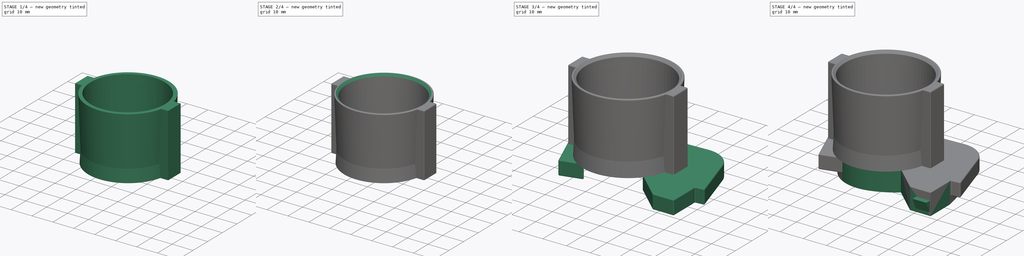
[diagram: build sequence overview — one tinted view per stage of 4, left to right]
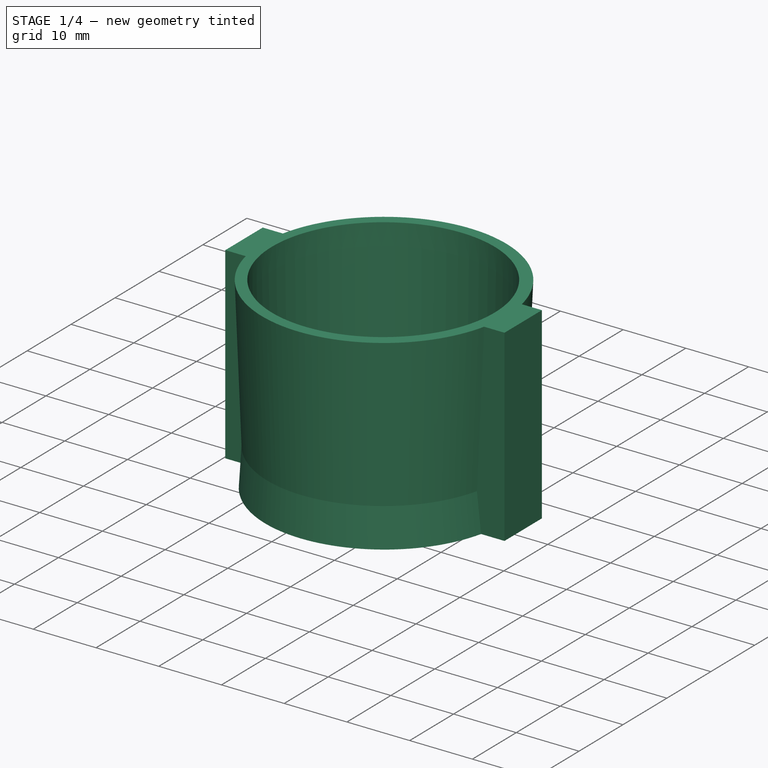
[diagram: stage 1 of 4 — iso view after this stage's code; geometry added in this stage tinted green]
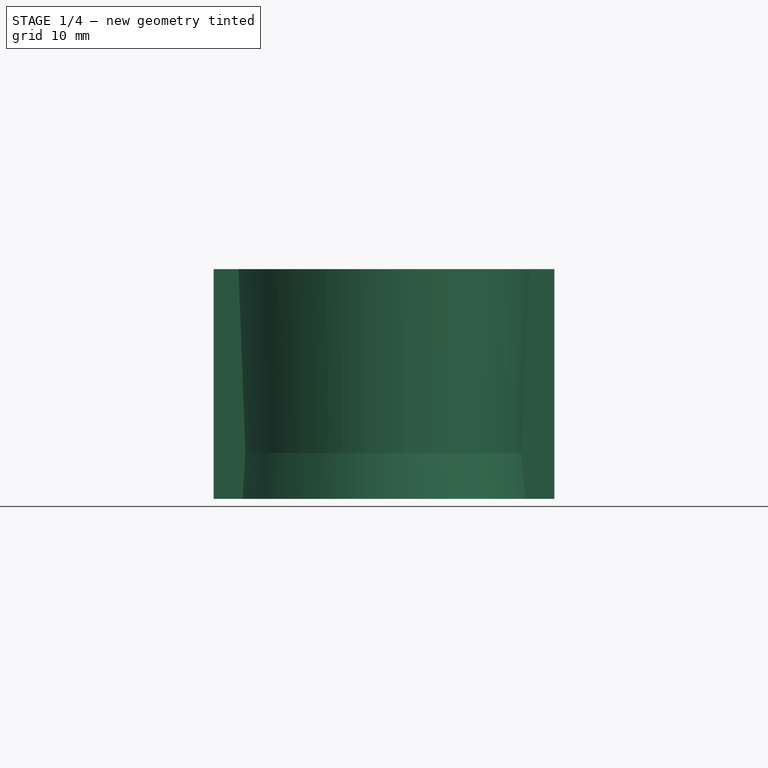
[diagram: stage 1 of 4 — front view after this stage's code; geometry added in this stage tinted green]
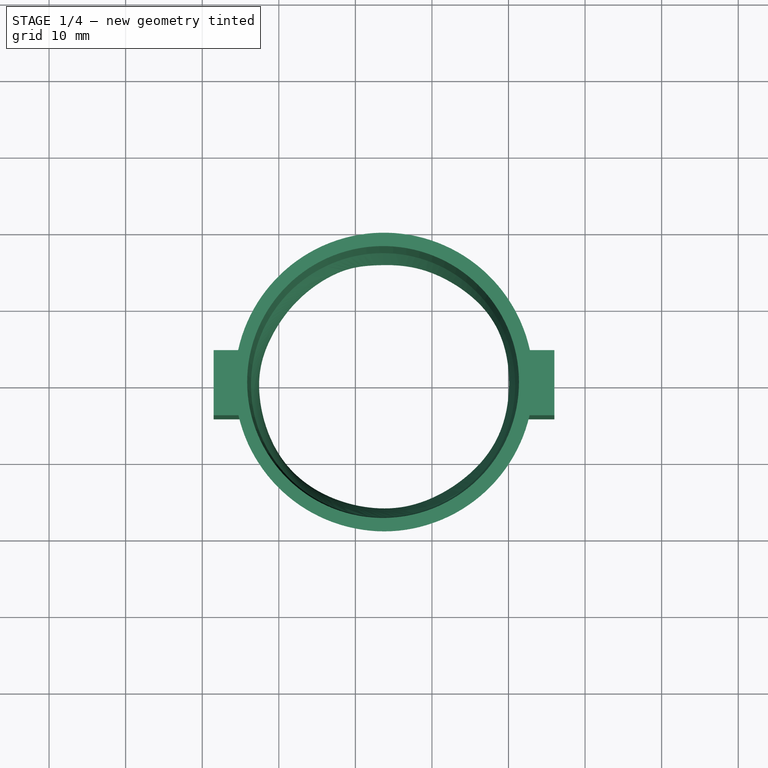
[diagram: stage 1 of 4 — top view after this stage's code; geometry added in this stage tinted green]
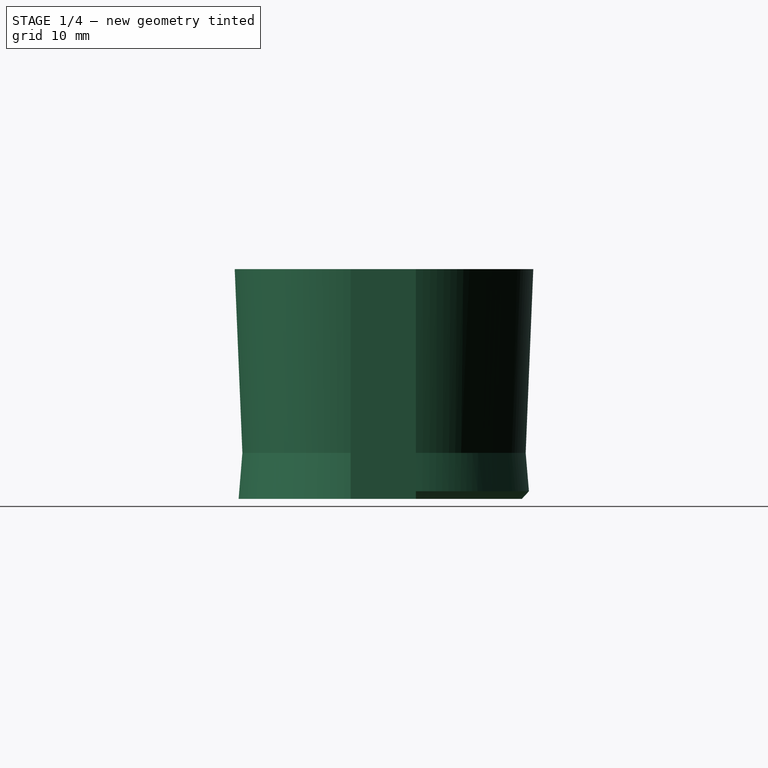
[diagram: stage 1 of 4 — right view after this stage's code; geometry added in this stage tinted green]
FCSTD DOCUMENT  (FreeCAD 0.20R27319 (Git))
Label: PlanerNozzle
License: All rights reserved
LicenseURL: http://en.wikipedia.org/wiki/All_rights_reserved
objects: Sketcher::SketchObject×7, Part::Extrusion×3, Part::Chamfer×3, Part::Fillet×3, PartDesign::AdditiveLoft×2, Spreadsheet::Sheet×1, PartDesign::Plane×1, Image::ImagePlane×1, Part::Offset2D×1, PartDesign::Body×1
note: 23 computed .brp shape members not serialized (recipe doc carries the construction recipe); baked Part::Feature solids carry a one-line shape summary decoded from their .brp

FEATURE [PartDesign::AdditiveLoft] AdditiveLoft
  Closed = false
  Profile = -> Sketch003
  Ruled = false
  Sections = -> [Sketch004]
FEATURE [PartDesign::AdditiveLoft] AdditiveLoft001
  BaseFeature = -> AdditiveLoft
  Closed = false
  Profile = -> Sketch005
  Ruled = false
  Sections = -> [Sketch004]
FEATURE [Part::Chamfer] Chamfer001
  Base = -> AdditiveLoft001
  Edges = 1 edges r=1: [Edge1]
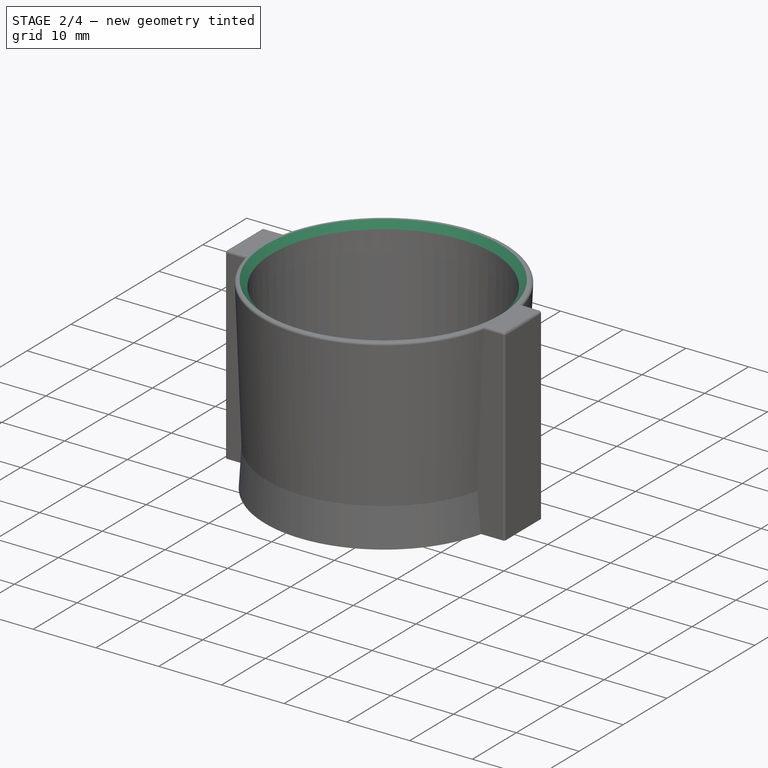
[diagram: stage 2 of 4 — iso view after this stage's code; geometry added in this stage tinted green]
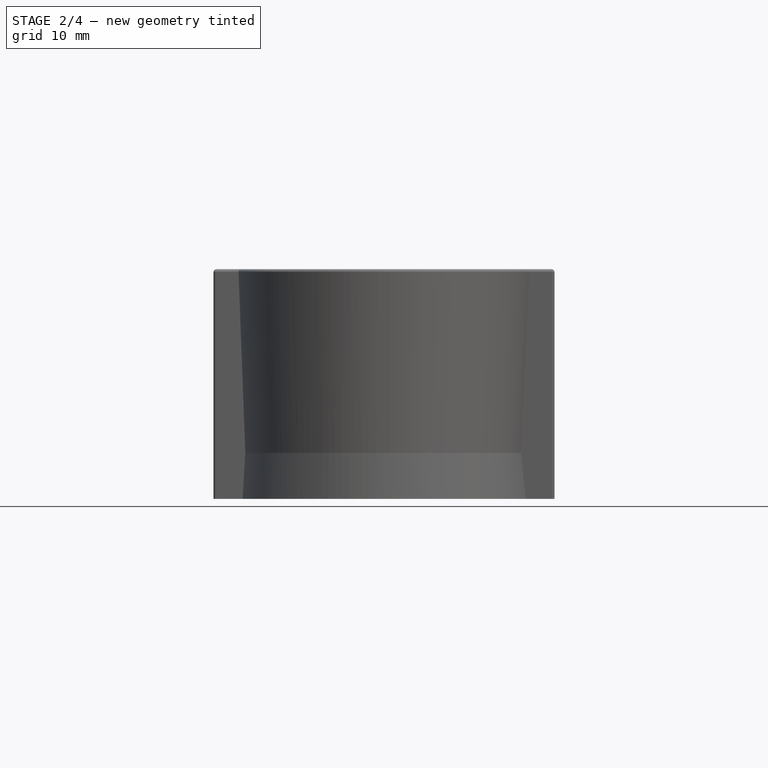
[diagram: stage 2 of 4 — front view after this stage's code; geometry added in this stage tinted green]
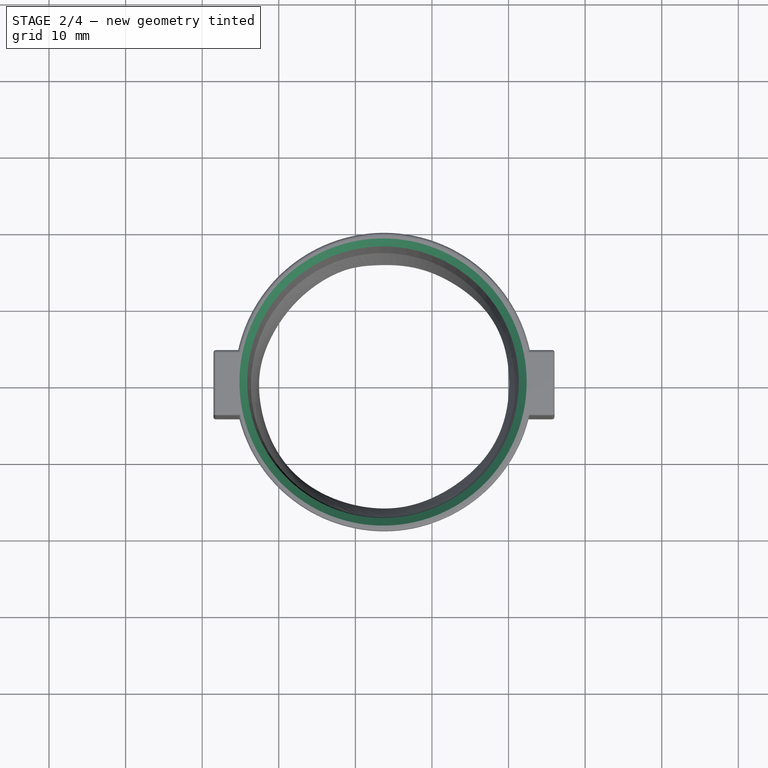
[diagram: stage 2 of 4 — top view after this stage's code; geometry added in this stage tinted green]
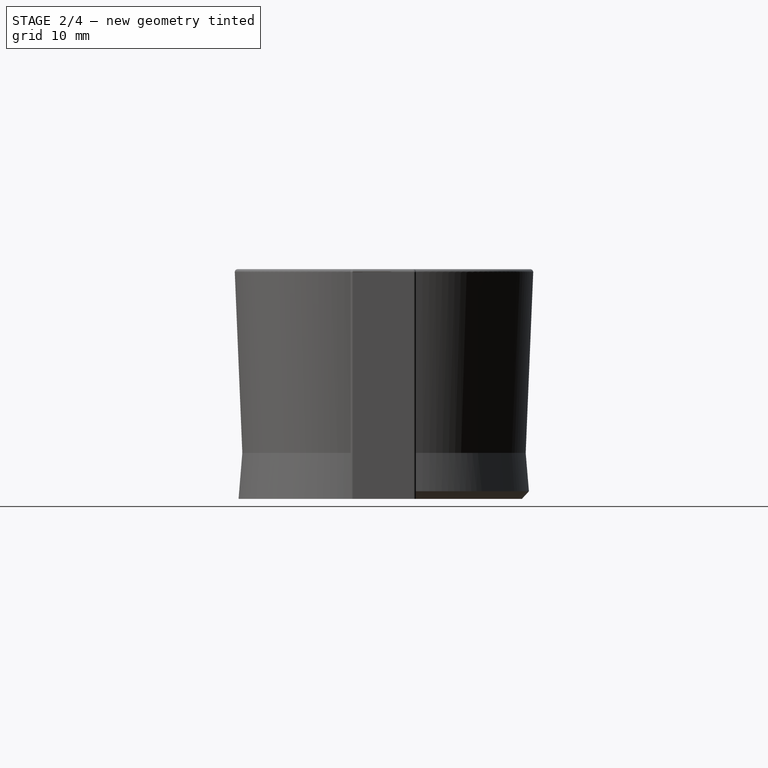
[diagram: stage 2 of 4 — right view after this stage's code; geometry added in this stage tinted green]
FEATURE [Part::Chamfer] Chamfer002
  Base = -> Chamfer001
  Edges = 1 edges r=1: [Edge52]
FEATURE [Part::Fillet] Fillet001
  Base = -> Chamfer002
  Edges = 8 edges r=0.4: [Edge11,Edge12,Edge13,Edge14,Edge15,Edge16,Edge17,Edge18]
FEATURE [Part::Fillet] Fillet002
  Base = -> Fillet001
  Edges = 8 edges r=0.3: [Edge42,Edge44,Edge49,Edge53,Edge60,Edge65,Edge73,Edge77]
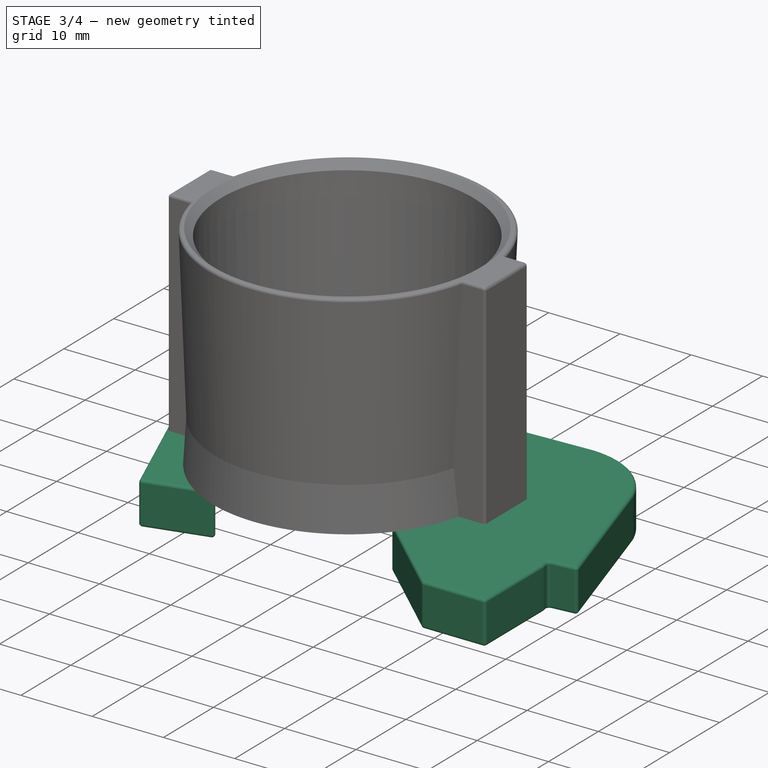
[diagram: stage 3 of 4 — iso view after this stage's code; geometry added in this stage tinted green]
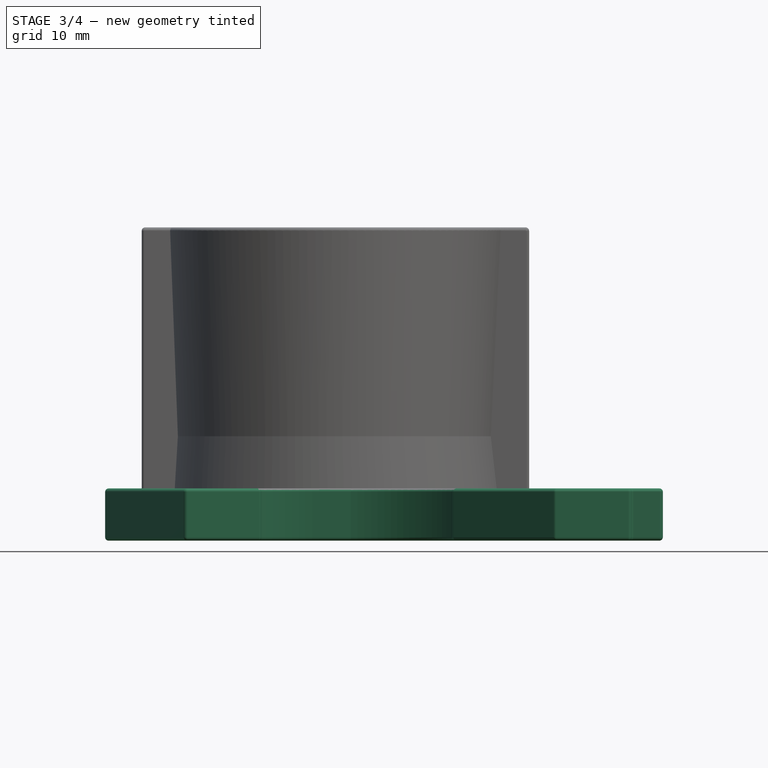
[diagram: stage 3 of 4 — front view after this stage's code; geometry added in this stage tinted green]
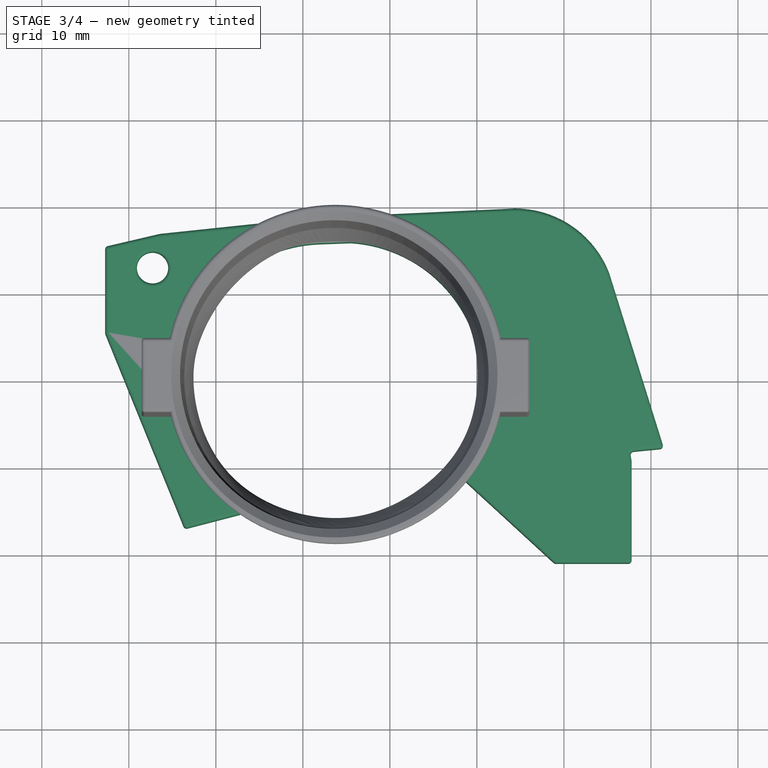
[diagram: stage 3 of 4 — top view after this stage's code; geometry added in this stage tinted green]
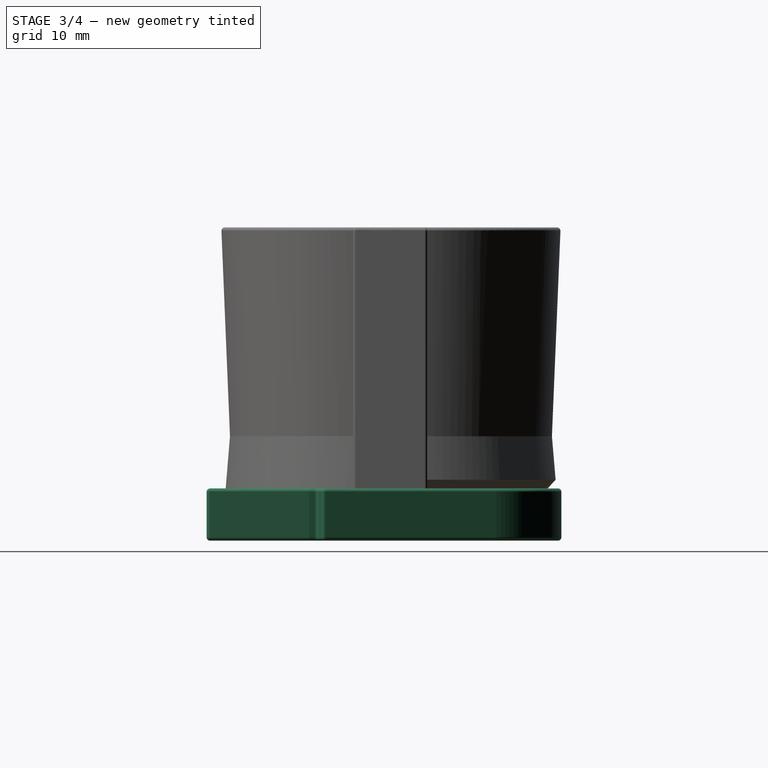
[diagram: stage 3 of 4 — right view after this stage's code; geometry added in this stage tinted green]
FEATURE [Sketcher::SketchObject] Sketch
  FullyConstrained = true
  MapMode = 5
  Support = -> [XY_Plane]
  sketch-geometry (9):
    g0: ArcOfCircle CenterX=13.6173 CenterY=7.64706 CenterZ=0 NormalX=0 NormalY=0 NormalZ=1 AngleXU=0 Radius=8.98057 StartAngle=0.465452 EndAngle=1.59252
    g1: ArcOfCircle CenterX=-7.8333 CenterY=0.973365 CenterZ=0 NormalX=0 NormalY=0 NormalZ=1 AngleXU=0 Radius=15.1867 StartAngle=1.59252 EndAngle=2.18773
    g2: ArcOfCircle CenterX=-10.2795 CenterY=11.9075 CenterZ=0 NormalX=0 NormalY=0 NormalZ=1 AngleXU=0 Radius=28.8964 StartAngle=4.97292 EndAngle=5.38581
    g3: LineSegment StartX=-8.1632 StartY=16.1565 StartZ=0 EndX=13.4222 EndY=16.6255 EndZ=0
    g4: ArcOfCircle CenterX=-7.08236 CenterY=-0.085358 CenterZ=0 NormalX=0 NormalY=0 NormalZ=1 AngleXU=0 Radius=16.4847 StartAngle=2.18773 EndAngle=4.97292
    g5: LineSegment StartX=27.7807 StartY=-9.18364 StartZ=0 EndX=27.7807 EndY=-20.9535 EndZ=0
    g6: LineSegment StartX=7.74209 StartY=-10.6807 StartZ=0 EndX=18.9241 EndY=-20.9535 EndZ=0
    g7: LineSegment StartX=18.9241 StartY=-20.9535 StartZ=0 EndX=27.7807 EndY=-20.9535 EndZ=0
    g8: ArcOfCircle CenterX=-70.9367 CenterY=-26.8964 CenterZ=0 NormalX=0 NormalY=0 NormalZ=1 AngleXU=0 Radius=100.294 StartAngle=0.17754 EndAngle=0.394787
  constraints (18):
    c: Tangent(g3,g1) = 1.5708
    c: Tangent(g4,g2) = -1.5708
    c: Tangent(g3,g0) = 1.5708
    c: Coincident(g6,g2)
    c: Coincident(g7,g6)
    c: Coincident(g7,g5)
    c: Horizontal(g7)
    c: Coincident(g8,g0)
    c: Coincident(g5,g8)
    c: Block(g1)
    c: Tangent(g4,g1) = -1.5708
    c: Block(g4)
    c: Block(g2)
    c: Block(g6)
    c: Block(g7)
    c: Block(g5)
    c: Block(g0)
    c: Block(g8)
FEATURE [Spreadsheet::Sheet] Spreadsheet
  cells = A1=Scale; B1(Scale)=0.15; C1=29; B2=0.15; B3=0.31
FEATURE [PartDesign::Plane] DatumPlane
  AttachmentOffset = pos=(0,0,6.3) rot=(0,0,1;0rad)
  Length = 60
  MapMode = 2
  Placement = pos=(0,0,6.3) rot=(0,0,1;0rad)
  ResizeMode = 0
  Width = 60
FEATURE [Image::ImagePlane] ImagePlane
  Placement = pos=(0,-1,-0.1) rot=(0,0,1;0rad)
  XSize = 68.4915
  YSize = 44.4045
  expr: XSize = 456.61 * Spreadsheet.Scale
  expr: YSize = 296.03 * Spreadsheet.Scale
FEATURE [Part::Offset2D] Offset2D
  Fill = true
  Intersection = false
  Join = 0
  Mode = 1
  SelfIntersection = false
  Source = -> Sketch
  Value = -1
FEATURE [Sketcher::SketchObject] Sketch001
  AttacherType = A
  ExternalGeometry = -> [Offset2D]
  FullyConstrained = false
  MapMode = 5
  Support = -> [XY_Plane]
  sketch-geometry (17):
    g0: Circle CenterX=-27.2731 CenterY=13.0055 CenterZ=0 NormalX=0 NormalY=0 NormalZ=1 AngleXU=0 Radius=1.8
    g1: LineSegment StartX=-32.7193 StartY=15.4311 StartZ=0 EndX=-26.4301 EndY=16.9002 EndZ=0
    g2: LineSegment StartX=-32.7193 StartY=15.4311 StartZ=0 EndX=-32.7181 EndY=5.47 EndZ=0
    g3: LineSegment StartX=-32.7181 StartY=5.47 StartZ=0 EndX=-23.5932 EndY=-16.9853 EndZ=0
    g4: LineSegment StartX=31.4962 StartY=-7.74358 StartZ=0 EndX=27.5848 EndY=-8.12436 EndZ=0
    g5: ArcOfCircle CenterX=14.3749 CenterY=8.21345 CenterZ=0 NormalX=0 NormalY=0 NormalZ=1 AngleXU=0 Radius=11.6038 StartAngle=0.364809 EndAngle=1.5697
    g6: LineSegment StartX=-26.4301 StartY=16.9002 StartZ=0 EndX=-8.77976 EndY=18.7554 EndZ=0
    g7: LineSegment StartX=14.3876 StartY=19.8172 StartZ=0 EndX=-8.77975 EndY=18.7554 EndZ=0
    g8: LineSegment StartX=-23.5932 StartY=-16.9853 StartZ=0 EndX=-14.014 EndY=-14.4965 EndZ=0
    g9: LineSegment StartX=27.5848 StartY=-8.12436 StartZ=0 EndX=27.7807 EndY=-9.18364 EndZ=0
    g10: LineSegment StartX=27.7807 StartY=-9.18364 StartZ=0 EndX=27.7807 EndY=-20.9535 EndZ=0
    g11: LineSegment StartX=27.7807 StartY=-20.9535 StartZ=0 EndX=18.9241 EndY=-20.9535 EndZ=0
    g12: LineSegment StartX=18.9241 StartY=-20.9535 StartZ=0 EndX=7.05532 EndY=-10.0497 EndZ=0
    g13: ArcOfCircle CenterX=-7.56686 CenterY=-0.0475203 CenterZ=0 NormalX=0 NormalY=0 NormalZ=1 AngleXU=0 Radius=15.8221 StartAngle=1.60655 EndAngle=4.2927
    g14: LineSegment StartX=-8.13248 StartY=15.7644 StartZ=0 EndX=-4.484 EndY=15.9009 EndZ=0
    g15: ArcOfCircle CenterX=-5.48061 CenterY=-0.0831522 CenterZ=0 NormalX=0 NormalY=0 NormalZ=1 AngleXU=0 Radius=16.0151 StartAngle=5.61148 EndAngle=7.79171
    g16: LineSegment StartX=25.2151 StartY=12.3533 StartZ=0 EndX=31.4962 EndY=-7.74358 EndZ=0
  constraints (22):
    c: Coincident(g1,g6)
    c: Coincident(g6,g7)
    c: Coincident(g5,g7)
    c: Coincident(g9,g4)
    c: Coincident(g9,g10)
    c: Coincident(g10,g11)
    c: Coincident(g11,g12)
    c: Coincident(g14,g15)
    c: Coincident(g13,g14)
    c: Coincident(g8,g13)
    c: Coincident(g3,g8)
    c: Coincident(g1,g2)
    c: Coincident(g2,g3)
    c: Coincident(g11,g-5)
    c: Coincident(g10,g-4)
    c: Coincident(g9,g-3)
    c: Coincident(g16,g5)
    c: Coincident(g4,g16)
    c: Diameter(g0) = 3.6
    c: Block(g13)
    c: PointOnObject(g-5,g12)
    c: Coincident(g15,g12)
FEATURE [Sketcher::SketchObject] Sketch002
  ExternalGeometry = -> [Sketch001]
  FullyConstrained = true
  MapMode = 5
  Placement = pos=(0,0,6.3) rot=(0,0,1;0rad)
  Support = -> [DatumPlane]
  sketch-geometry (2):
    g0: Circle CenterX=-6.6 CenterY=0 CenterZ=0 NormalX=0 NormalY=0 NormalZ=1 AngleXU=0 Radius=19
    g1: Circle CenterX=-6.6 CenterY=0 CenterZ=0 NormalX=0 NormalY=0 NormalZ=1 AngleXU=0 Radius=17.35
  constraints (5):
    c: Diameter(g0) = 38
    c: Coincident(g1,g0)
    c: Diameter(g1) = 34.7
    c: PointOnObject(g0,g-1)
    c: DistanceX(g0,g-1) = 6.6
FEATURE [Part::Extrusion] Extrude003
  Base = -> Sketch001
  Dir = (0,0,1)
  DirMode = 2
  FaceMakerClass = Part::FaceMakerBullseye
  LengthFwd = 6
  LengthRev = 0
  Solid = true
  Symmetric = false
FEATURE [Part::Fillet] Fillet
  Base = -> Extrude003
  Edges = 49 edges r=0.4: [Edge1,Edge2,Edge3,Edge4,Edge5,Edge6,Edge7,Edge8,Edge9,Edge10,Edge11,Edge12,Edge13,Edge14,Edge15,Edge16,Edge17,Edge18,Edge19,Edge20,Edge21,Edge22,Edge23,Edge24,Edge25,Edge26,Edge27,Edge28,Edge29,Edge30,Edge31,Edge32,Edge33,Edge34,Edge35,Edge36,Edge37,Edge38,Edge39,Edge40,Edge42,Edge43,Edge44,Edge45,+5 more]
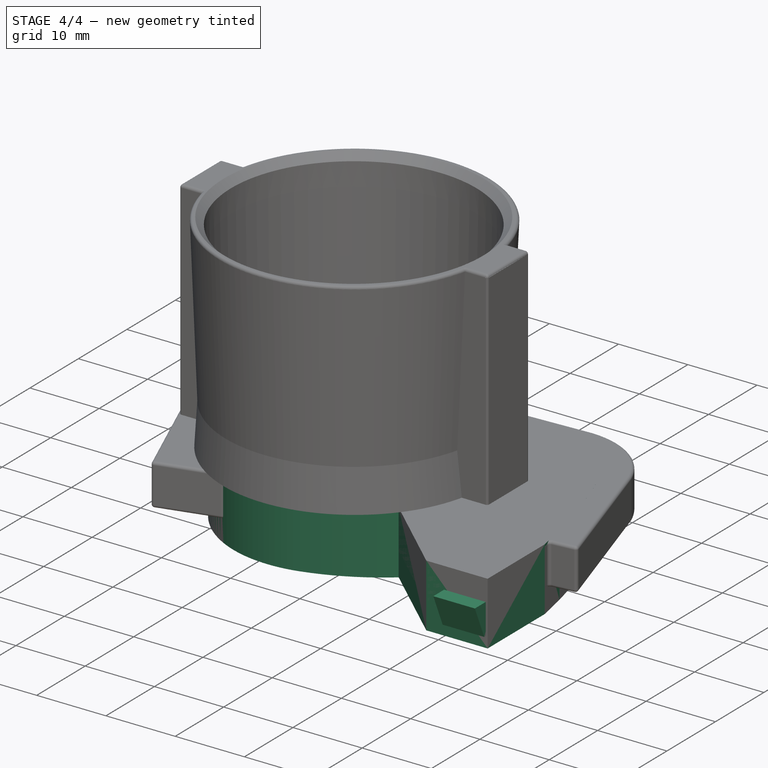
[diagram: stage 4 of 4 — iso view after this stage's code; geometry added in this stage tinted green]
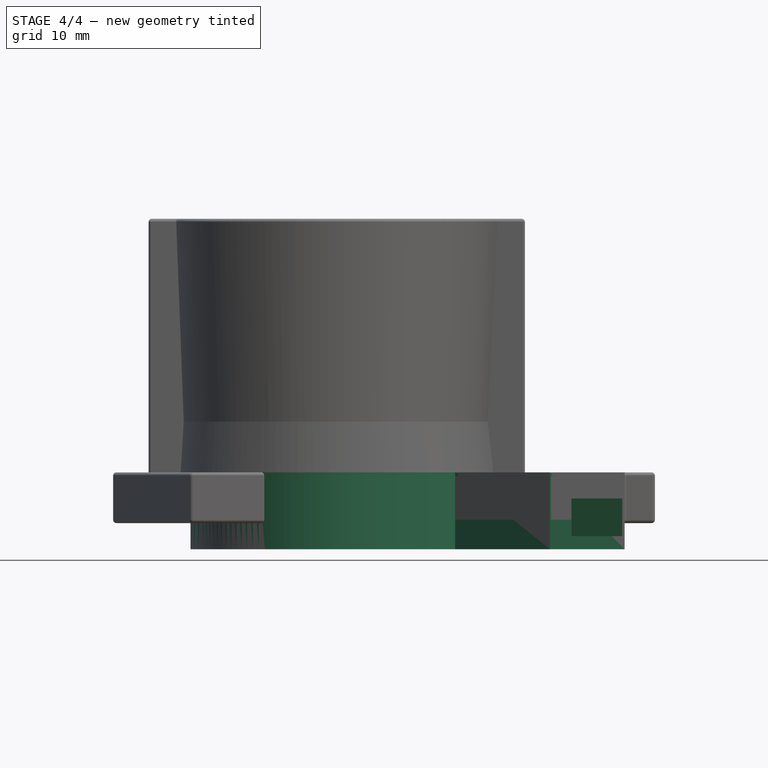
[diagram: stage 4 of 4 — front view after this stage's code; geometry added in this stage tinted green]
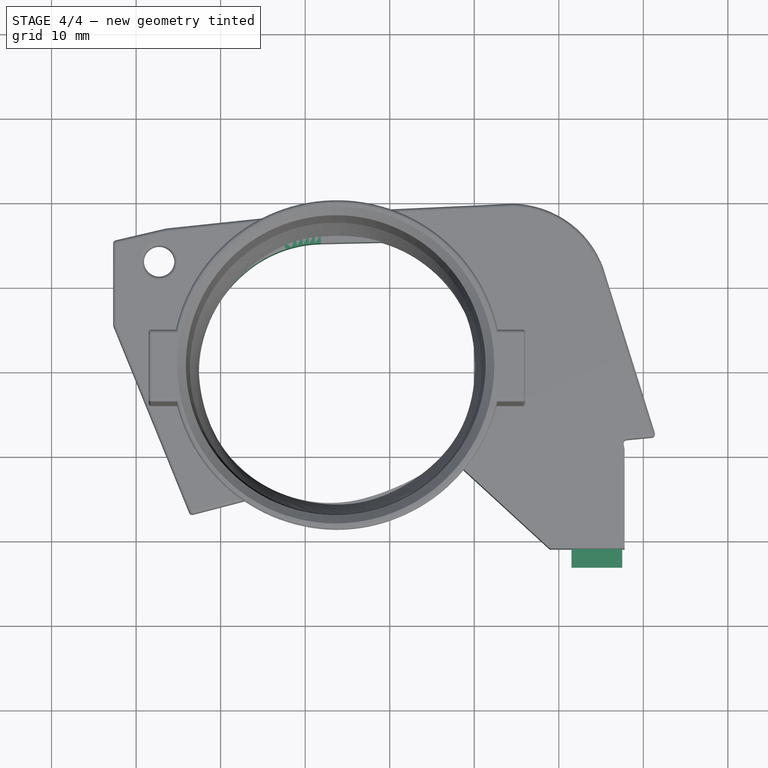
[diagram: stage 4 of 4 — top view after this stage's code; geometry added in this stage tinted green]
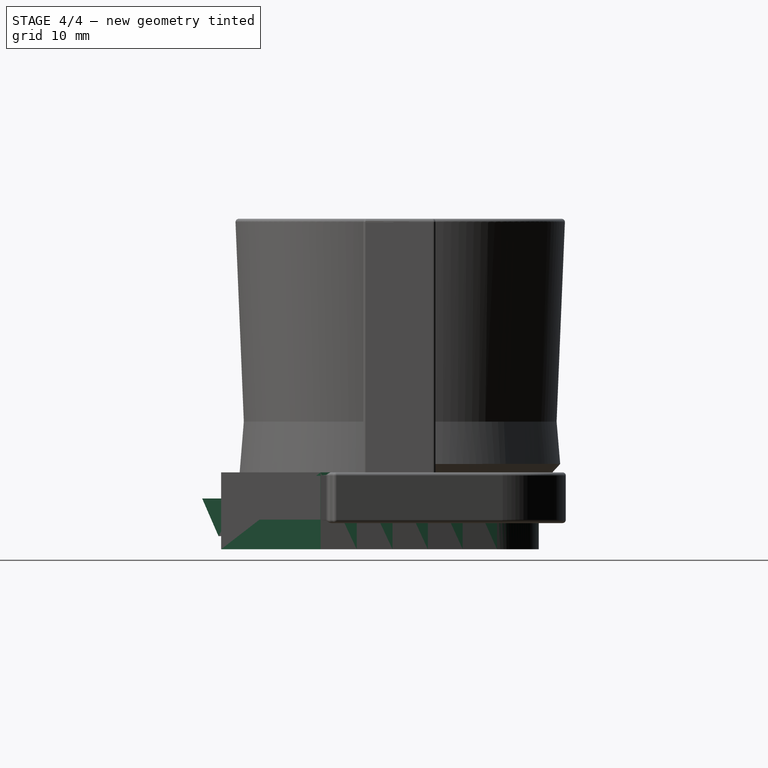
[diagram: stage 4 of 4 — right view after this stage's code; geometry added in this stage tinted green]
FEATURE [Part::Extrusion] Extrude
  Base = -> Offset2D
  Dir = (0,0,1)
  DirMode = 2
  FaceMakerClass = Part::FaceMakerBullseye
  LengthFwd = 6
  LengthRev = 3.1
  Solid = false
  Symmetric = false
FEATURE [Sketcher::SketchObject] Sketch003
  AttachmentOffset = pos=(0,0,6) rot=(0,0,1;0rad)
  FullyConstrained = false
  MapMode = 5
  Placement = pos=(0,0,6) rot=(0,0,1;0rad)
  Support = -> [XY_Plane]
  sketch-geometry (36):
    g0-g12: Circle x13 (B-spline internal-alignment scaffolding for g13; pole/knot coordinates omitted)
    g13: BSplineCurve PolesCount=13 KnotsCount=14 Degree=3 IsPeriodic=1
    g14-g27: GeomPoint x14 (B-spline internal-alignment scaffolding for g13; pole/knot coordinates omitted)
    g28: ArcOfCircle CenterX=-6.22922 CenterY=0.239776 CenterZ=0 NormalX=0 NormalY=0 NormalZ=1 AngleXU=0 Radius=19 StartAngle=3.37332 EndAngle=6.05146
    g29: LineSegment StartX=-24.7694 StartY=4.39463 StartZ=0 EndX=-28.5159 EndY=4.39463 EndZ=0
    g30: LineSegment StartX=-28.5159 StartY=4.39463 StartZ=0 EndX=-28.5159 EndY=-4.12375 EndZ=0
    g31: LineSegment StartX=-28.5159 StartY=-4.12375 StartZ=0 EndX=-24.7214 EndY=-4.12375 EndZ=0
    g32: LineSegment StartX=12.3109 StartY=4.39463 StartZ=0 EndX=15.9949 EndY=4.39463 EndZ=0
    g33: LineSegment StartX=15.9949 StartY=4.39463 StartZ=0 EndX=15.9949 EndY=-4.12375 EndZ=0
    g34: LineSegment StartX=15.9949 StartY=-4.12375 StartZ=0 EndX=12.2629 EndY=-4.12375 EndZ=0
    g35: ArcOfCircle CenterX=-6.22922 CenterY=0.239776 CenterZ=0 NormalX=0 NormalY=0 NormalZ=1 AngleXU=0 Radius=19 StartAngle=0.220458 EndAngle=2.92113
  constraints (24):
    c: Weight(g0) = 1
    c: Equal(g0, g1-g12) x12
    c: InternalAlignment(g0-g12 -> g13) x13
    c: InternalAlignment(g14-g27 -> g13) x14
    c: Horizontal(g29)
    c: Coincident(g29,g30)
    c: Vertical(g30)
    c: Coincident(g30,g31)
    c: Horizontal(g31)
    c: Horizontal(g32)
    c: Coincident(g32,g33)
    c: Vertical(g33)
    c: Coincident(g33,g34)
    c: Horizontal(g34)
    c: Horizontal(g29,g32)
    c: Diameter(g28) = 38
    c: Block(g28)
    c: Horizontal(g30,g33)
    c: Coincident(g35,g29)
    c: Coincident(g28,g31)
    c: Equal(g28,g35)
    c: Coincident(g28,g34)
    c: Coincident(g35,g32)
    c: Coincident(g28,g35)
FEATURE [Sketcher::SketchObject] Sketch004
  AttachmentOffset = pos=(0,0,12) rot=(0,0,1;0rad)
  ExternalGeometry = -> [Sketch003]
  FullyConstrained = false
  MapMode = 5
  Placement = pos=(0,0,12) rot=(0,0,1;0rad)
  Support = -> [XY_Plane]
  sketch-geometry (9):
    g0: Circle CenterX=-6.38319 CenterY=0.230304 CenterZ=0 NormalX=0 NormalY=0 NormalZ=1 AngleXU=0 Radius=17.25
    g1: ArcOfCircle CenterX=-6.38319 CenterY=0.230304 CenterZ=0 NormalX=0 NormalY=0 NormalZ=1 AngleXU=0 Radius=18.5 StartAngle=3.37918 EndAngle=6.0456
    g2: LineSegment StartX=-28.5159 StartY=4.39463 StartZ=0 EndX=-28.5159 EndY=-4.12375 EndZ=0
    g3: LineSegment StartX=15.9949 StartY=4.39463 StartZ=0 EndX=15.9949 EndY=-4.12375 EndZ=0
    g4: ArcOfCircle CenterX=-6.38319 CenterY=0.230304 CenterZ=0 NormalX=0 NormalY=0 NormalZ=1 AngleXU=0 Radius=18.5 StartAngle=0.227044 EndAngle=2.91455
    g5: LineSegment StartX=-28.5159 StartY=4.39463 StartZ=0 EndX=-24.4084 EndY=4.39463 EndZ=0
    g6: LineSegment StartX=-28.5159 StartY=-4.12375 StartZ=0 EndX=-24.3635 EndY=-4.12375 EndZ=0
    g7: LineSegment StartX=15.9949 StartY=4.39463 StartZ=0 EndX=11.642 EndY=4.39463 EndZ=0
    g8: LineSegment StartX=15.9949 StartY=-4.12375 StartZ=0 EndX=11.5971 EndY=-4.12375 EndZ=0
  constraints (17):
    c: Coincident(g1,g0)
    c: Diameter(g0) = 34.5
    c: Diameter(g1) = 37
    c: Equal(g1,g4)
    c: Coincident(g1,g4)
    c: Coincident(g5,g2)
    c: Coincident(g5,g4)
    c: Horizontal(g5)
    c: Coincident(g6,g2)
    c: Coincident(g6,g1)
    c: Horizontal(g6)
    c: Coincident(g7,g3)
    c: Coincident(g7,g4)
    c: Horizontal(g7)
    c: Coincident(g8,g3)
    c: Coincident(g8,g1)
    c: Horizontal(g8)
FEATURE [Sketcher::SketchObject] Sketch005
  AttachmentOffset = pos=(0,0,36) rot=(0,0,1;0rad)
  ExternalGeometry = -> [Sketch004]
  FullyConstrained = false
  MapMode = 5
  Placement = pos=(0,0,36) rot=(0,0,1;0rad)
  Support = -> [XY_Plane]
  sketch-geometry (9):
    g0: Circle CenterX=-6.38319 CenterY=0.230304 CenterZ=0 NormalX=0 NormalY=0 NormalZ=1 AngleXU=0 Radius=17.75
    g1: ArcOfCircle CenterX=-6.25946 CenterY=0.230315 CenterZ=0 NormalX=0 NormalY=0 NormalZ=1 AngleXU=0 Radius=19.5 StartAngle=0.215212 EndAngle=2.92638
    g2: ArcOfCircle CenterX=-6.25946 CenterY=0.230315 CenterZ=0 NormalX=0 NormalY=0 NormalZ=1 AngleXU=0 Radius=19.5 StartAngle=3.36678 EndAngle=6.058
    g3: LineSegment StartX=12.7907 StartY=4.39463 StartZ=0 EndX=15.9949 EndY=4.39463 EndZ=0
    g4: LineSegment StartX=15.9949 StartY=4.39463 StartZ=0 EndX=15.9949 EndY=-4.12375 EndZ=0
    g5: LineSegment StartX=15.9949 StartY=-4.12375 StartZ=0 EndX=12.7482 EndY=-4.12375 EndZ=0
    g6: LineSegment StartX=-25.3096 StartY=4.39463 StartZ=0 EndX=-28.5159 EndY=4.39463 EndZ=0
    g7: LineSegment StartX=-28.5159 StartY=4.39463 StartZ=0 EndX=-28.5159 EndY=-4.12375 EndZ=0
    g8: LineSegment StartX=-28.5159 StartY=-4.12375 StartZ=0 EndX=-25.2671 EndY=-4.12375 EndZ=0
  constraints (19):
    c: Diameter(g0) = 35.5
    c: Diameter(g1) = 39
    c: Equal(g1,g2)
    c: Coincident(g1,g2)
    c: Coincident(g3,g1)
    c: Coincident(g3,g-4)
    c: Horizontal(g3)
    c: Coincident(g4,g3)
    c: Coincident(g4,g-4)
    c: Coincident(g5,g4)
    c: Horizontal(g5)
    c: Coincident(g2,g5)
    c: Coincident(g6,g-3)
    c: Horizontal(g6)
    c: Coincident(g6,g7)
    c: Coincident(g7,g-3)
    c: Coincident(g7,g8)
    c: Horizontal(g8)
    c: Coincident(g1,g6)
FEATURE [Sketcher::SketchObject] Sketch006
  AttachmentOffset = pos=(0,1,27.5) rot=(0,0,1;0rad)
  FullyConstrained = false
  MapMode = 5
  Placement = pos=(27.5,-5.9e-15,1) rot=(0.57735,0.57735,0.57735;2.0944rad)
  Support = -> [YZ_Plane]
  sketch-geometry (4):
    g0: LineSegment StartX=-18.9221 StartY=1.9 StartZ=0 EndX=-18.9221 EndY=-2.55085 EndZ=0
    g1: LineSegment StartX=-18.9221 StartY=-2.55085 StartZ=0 EndX=-21.2589 EndY=-2.55085 EndZ=0
    g2: LineSegment StartX=-18.9221 StartY=1.9 StartZ=0 EndX=-23.1908 EndY=1.9 EndZ=0
    g3: LineSegment StartX=-23.1908 StartY=1.9 StartZ=0 EndX=-21.2589 EndY=-2.55085 EndZ=0
  constraints (8):
    c: Coincident(g0,g1)
    c: Horizontal(g1)
    c: Vertical(g0)
    c: Horizontal(g2)
    c: Coincident(g2,g3)
    c: Coincident(g3,g1)
    c: Coincident(g0,g2)
    c: DistanceY(g-1,g0) = 1.9
FEATURE [Part::Extrusion] Extrude007
  Base = -> Sketch006
  Dir = (1,-1e-16,1e-16)
  DirMode = 2
  FaceMakerClass = Part::FaceMakerBullseye
  LengthFwd = 0
  LengthRev = 6
  Solid = true
  Symmetric = false
FEATURE [PartDesign::Body] Body
  Group = -> [Sketch003,Sketch004,Sketch005,Sketch006,AdditiveLoft,AdditiveLoft001]
  Origin = -> Origin
  Tip = -> AdditiveLoft001
FEATURE [Part::Chamfer] Chamfer
  Base = -> Extrude
  Edges = 1 edges r=0.6: [Edge36]
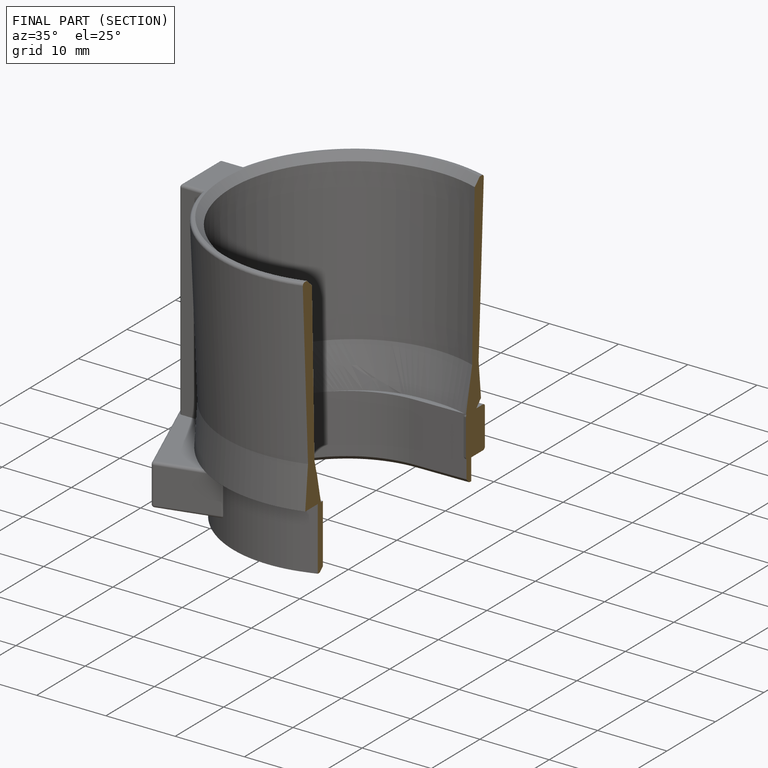
[diagram: finished part — half-section view (interior)]
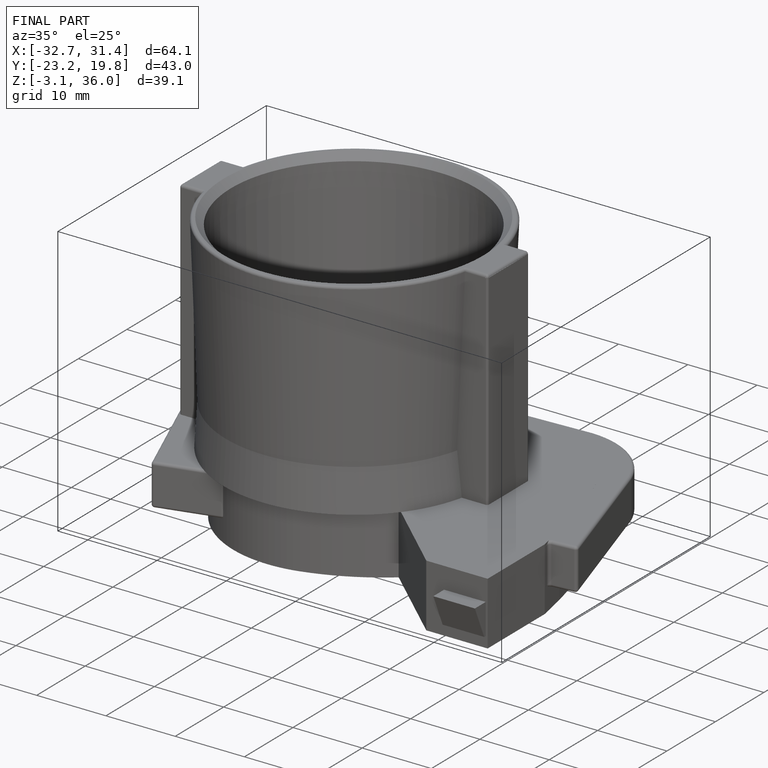
[diagram: finished part — iso view with bounding-box wireframe]
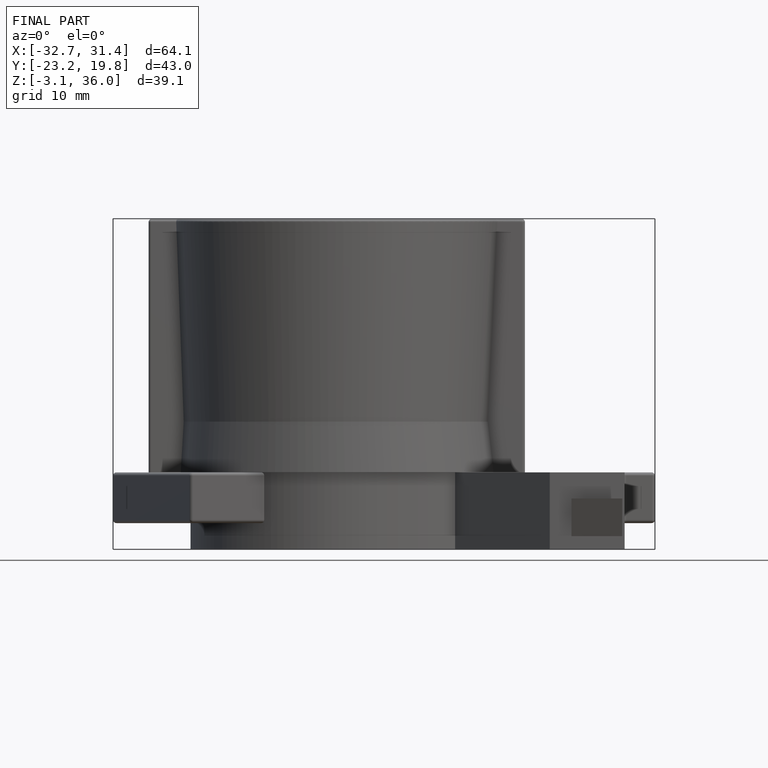
[diagram: finished part — front view with bounding-box wireframe]
